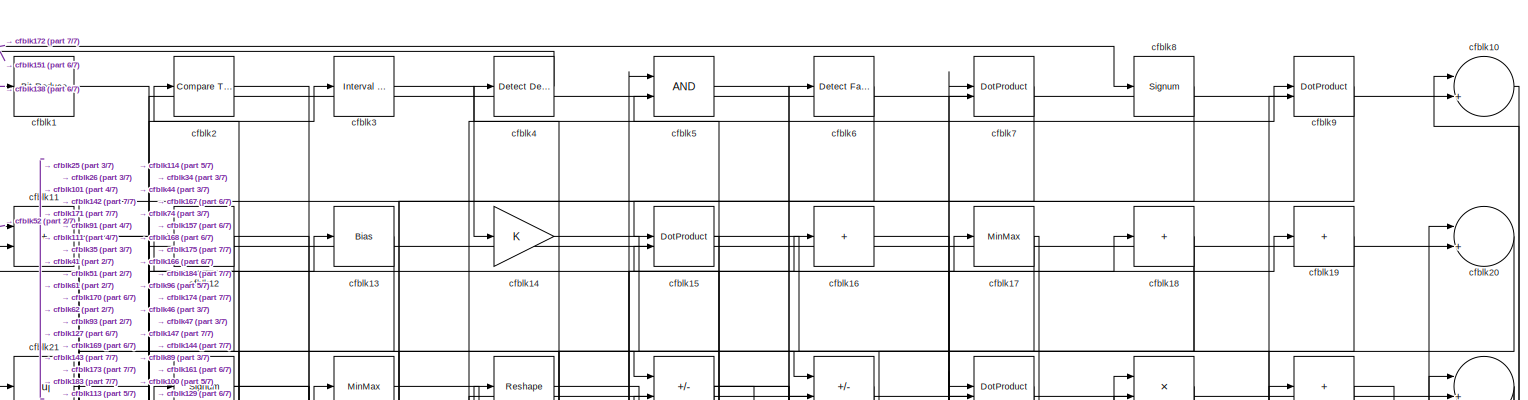
[diagram: root canvas - part 1/7, full width, top band]
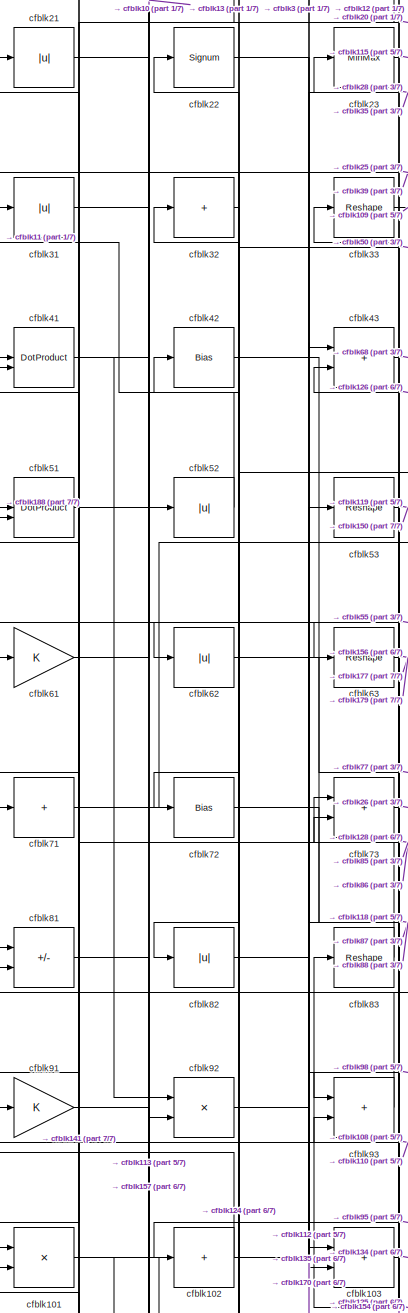
[diagram: root canvas - part 2/7, middle left region]
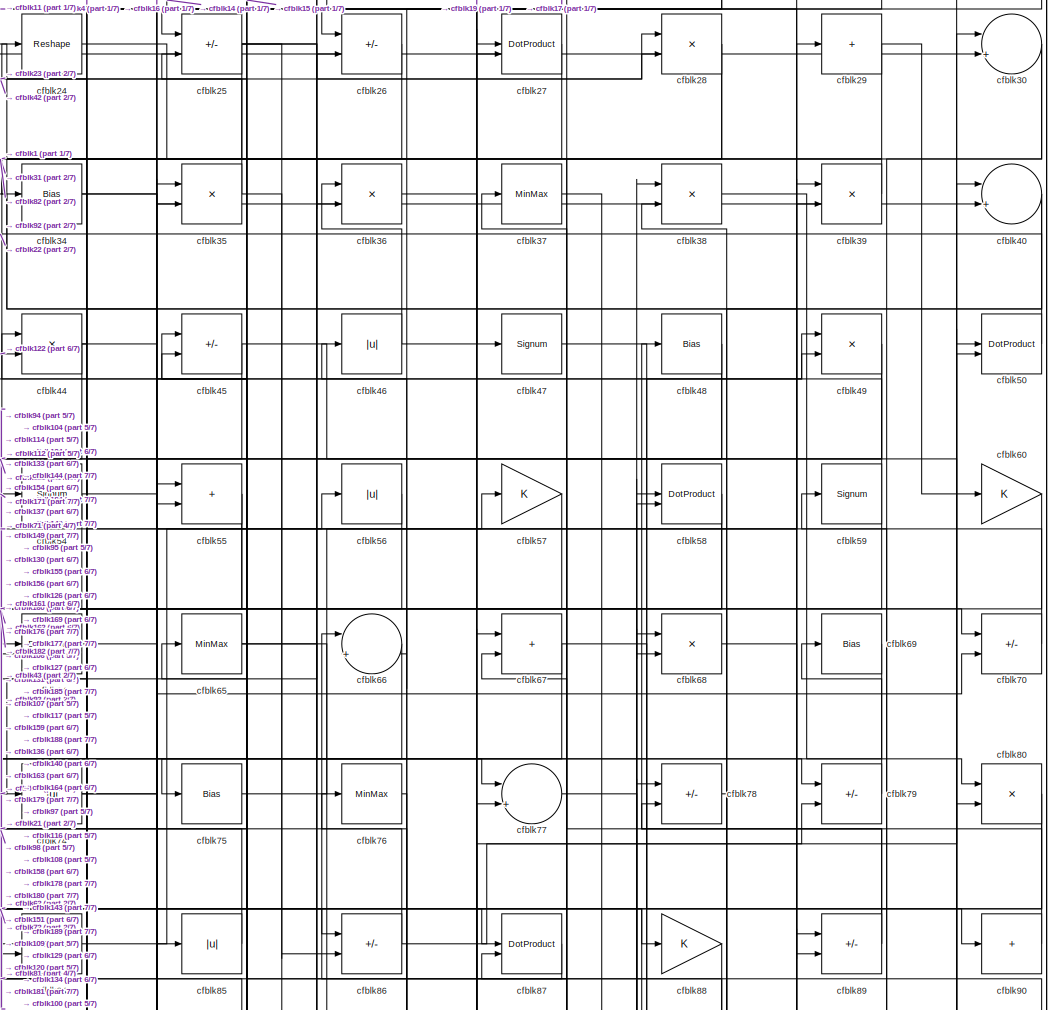
[diagram: root canvas - part 3/7, top center region]
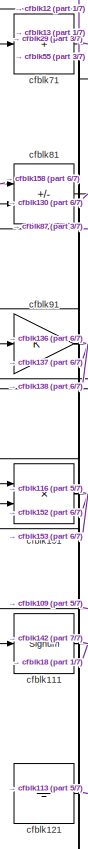
[diagram: root canvas - part 4/7, middle left region]
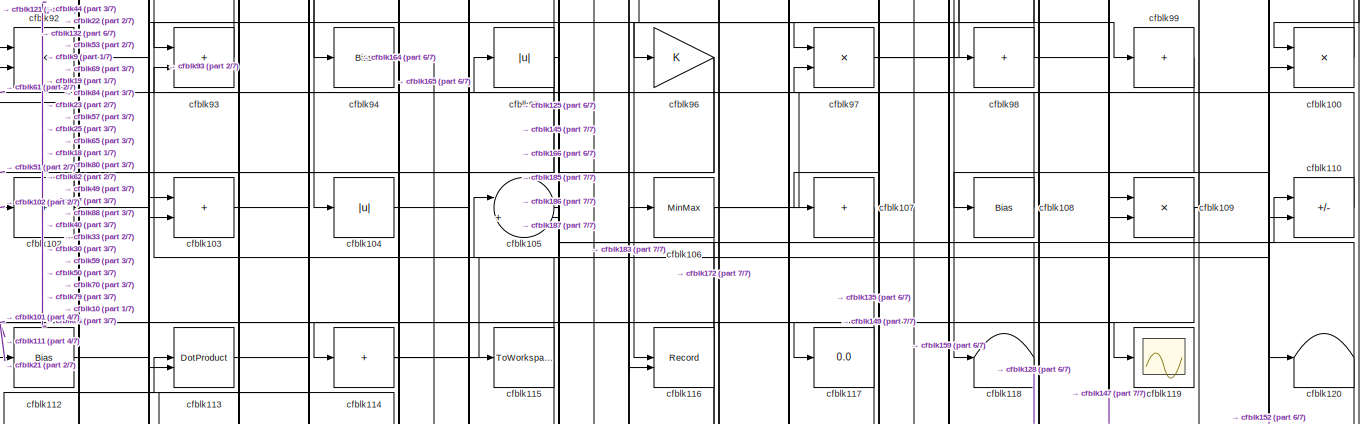
[diagram: root canvas - part 5/7, full width, middle band]
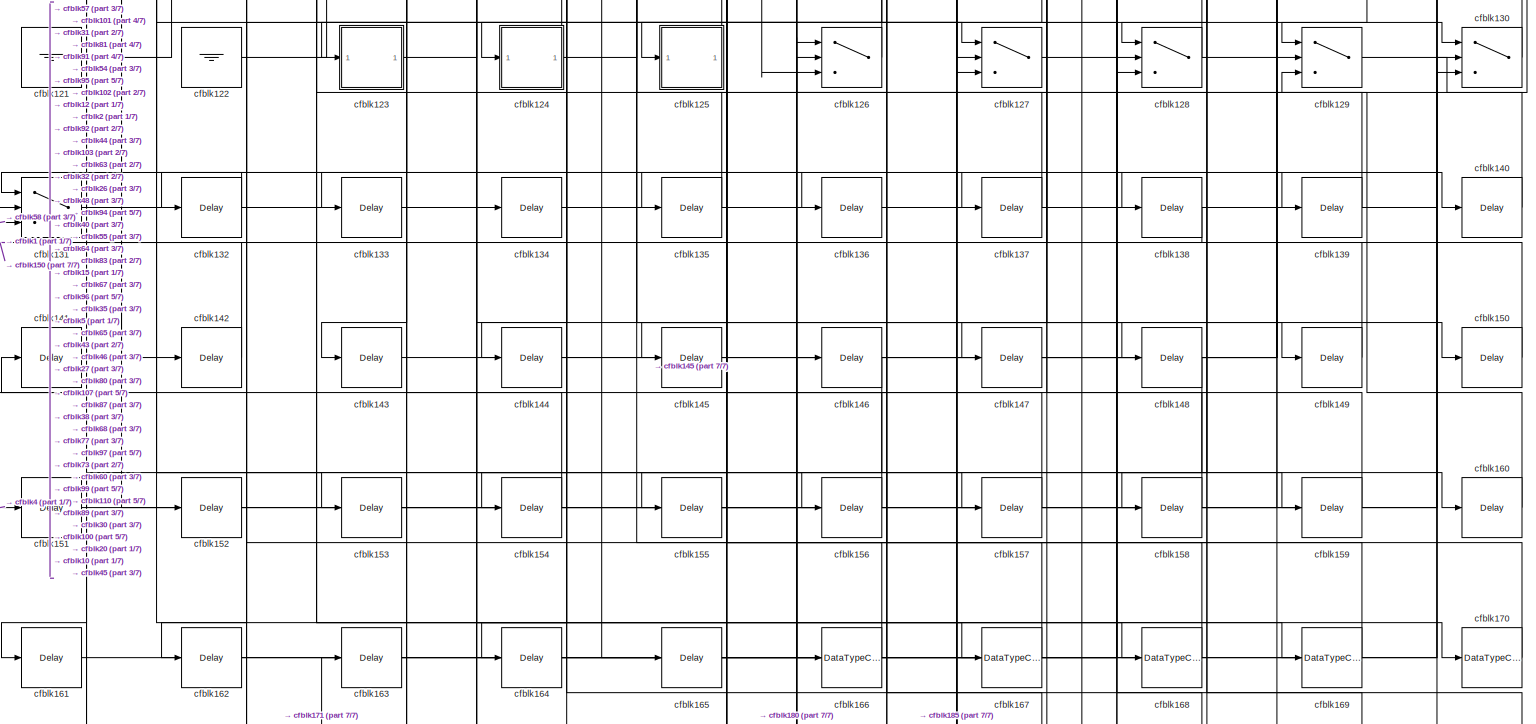
[diagram: root canvas - part 6/7, full width, bottom band]
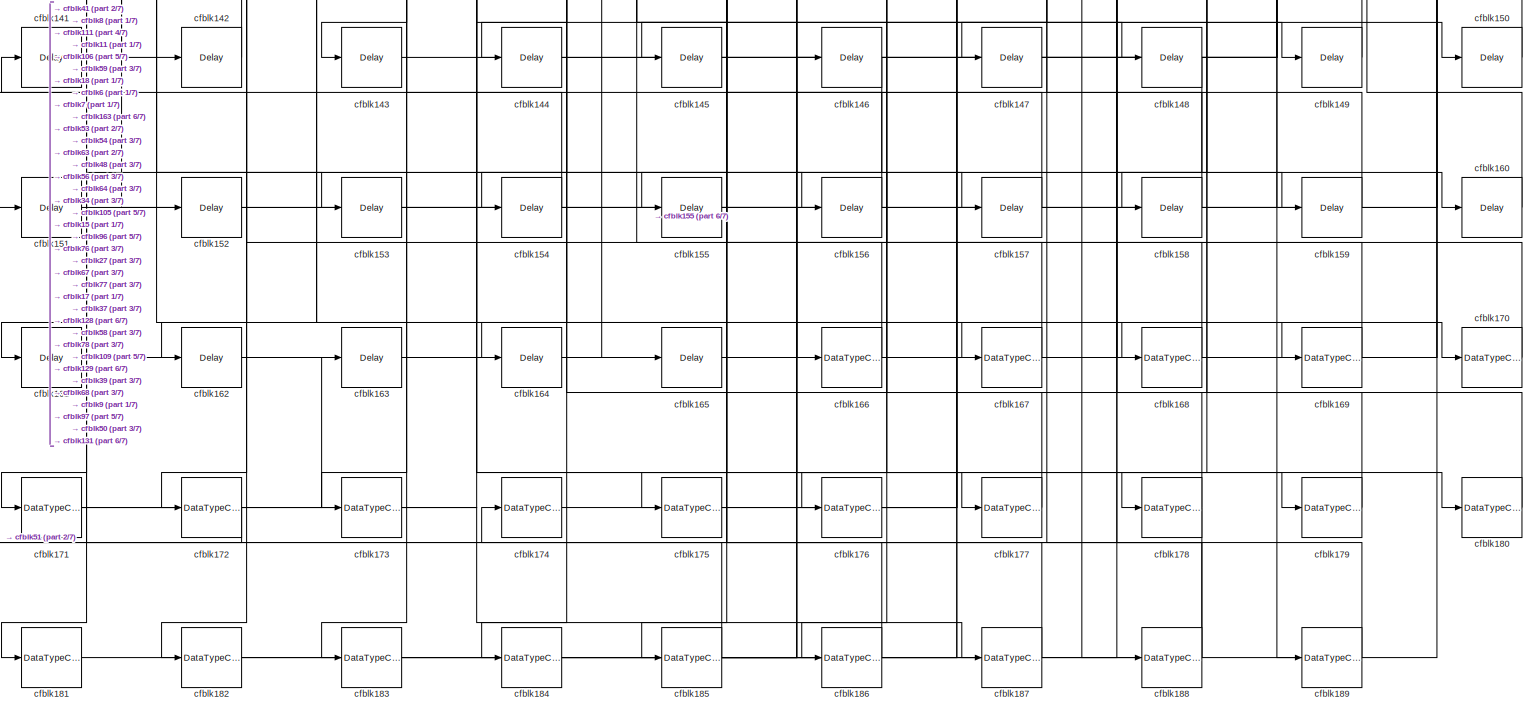
[diagram: root canvas - part 7/7, full width, bottom band]
MODEL slx_d969ff8a7fae
KIND model
CONFIG AbsTol = auto
CONFIG EnableMultiTasking = off
CONFIG FixedStep = auto
CONFIG MaxStep = auto
CONFIG MinStep = auto
CONFIG RelTol = 1e-3
CONFIG SampleTimeConstraint = Unconstrained
CONFIG SolverName = VariableStepAuto
CONFIG StartTime = 0.0
CONFIG StopTime = 10.0
BLOCK [Reference] cfblk1  REF=hdlsllib/Logic and Bit
Operations/Bit Reduce
  SourceBlock = hdlsllib/Logic and Bit\nOperations/Bit Reduce
  SourceType = Bit Reduce
BLOCK [Sum] cfblk10
  Inputs = |++
BLOCK [Product] cfblk100
  Inputs = */
  RndMeth = Zero
  SaturateOnIntegerOverflow = on
BLOCK [Product] cfblk101
  Inputs = */
  RndMeth = Zero
  SaturateOnIntegerOverflow = on
BLOCK [Sum] cfblk102
  IconShape = rectangular
  Inputs = +
BLOCK [Sum] cfblk103
  IconShape = rectangular
BLOCK [Abs] cfblk104
  SaturateOnIntegerOverflow = off
BLOCK [Sum] cfblk105
  Inputs = |++
BLOCK [MinMax] cfblk106
BLOCK [Sum] cfblk107
  IconShape = rectangular
  Inputs = +
BLOCK [Bias] cfblk108
  Bias = 0.0
  SaturateOnIntegerOverflow = off
BLOCK [Product] cfblk109
  Inputs = */
  RndMeth = Zero
  SaturateOnIntegerOverflow = on
BLOCK [Sum] cfblk11
  IconShape = rectangular
BLOCK [Sum] cfblk110
  IconShape = rectangular
  Inputs = +-
BLOCK [Signum] cfblk111
BLOCK [Bias] cfblk112
  Bias = 0.0
  SaturateOnIntegerOverflow = off
BLOCK [DotProduct] cfblk113
  OutDataTypeStr = Inherit: Inherit via internal rule
BLOCK [Sum] cfblk114
  IconShape = rectangular
  Inputs = +
BLOCK [ToWorkspace] cfblk115
  MaxDataPoints = inf
  SampleTime = -1
  SaveFormat = Timeseries
  VariableName = simout
BLOCK [Record] cfblk116
  CompatibilityTag = XY
  FileSettingsInternal = {"entries":[{"content":{"excelSettings":{"content":{},"type":"Streamout.ExcelSettings"}},"type":"Streamout.FileSettingStorage","uuid":""}],"packageUris":["http:\/\/schema.mathworks.com\/mf0\/streamout_blocks\/R2020a"],"version":"1.0"}
  Layout = [1 1]
  SignalsInternal = {"entries":[{"content":{"signals":[{"content":{"blockPath":[],"dimensions":[1],"domain":"","lineColor":"#a2142f","plots":[1],"port":1,"signalID":2341,"signalName":"XY Graph:1"},"type":"RecordBlkView.Signal","uuid":""},{"content":{"blockPath":[],"dimensions":[1],"domain":"","lineColor":"#139fff","plots":[1],"port":2,"signalID":2344,"signalName":"XY Graph:2"},"type":"RecordBlkView.Signal","uuid":""}...<+146ch>
  VisualizationBindings = {"xyplotplugin":{"info":[{"series":[{"bindingParametersList":[{"parameter":"X-Axis","signalID":2341,"signalName":"XY Graph:1"},{"parameter":"Y-Axis","signalID":2344,"signalName":"XY Graph:2"}],"seriesID":35827}],"subplotID":1}]}}
  st = -1
BLOCK [Display] cfblk117
  Decimation = 1
BLOCK [Terminator] cfblk118
BLOCK [Scope] cfblk119
  Floating = off
  NumInputPorts = 1
  ScopeSpecificationString = Simulink.scopes.TimeScopeBlockCfg('CurrentConfiguration', extmgr.ConfigurationSet(extmgr.Configuration('Core','General UI',true),extmgr.Configuration('Core','Source UI',true),extmgr.Configuration('Sources','WiredSimulink',true,'DataLoggingVariableName','ScopeData2','DataLoggingSaveFormat','Array','DataLoggingLimitDataPoints',true,'DataLoggingDecimation','1'),extmgr.Configuration('Visuals','Time Do...<+868ch>
BLOCK [Sum] cfblk12
  IconShape = rectangular
  Inputs = +
BLOCK [Terminator] cfblk120
BLOCK [Ground] cfblk121
BLOCK [Ground] cfblk122
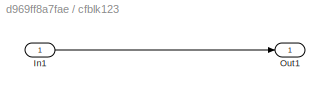
BLOCK [SubSystem] cfblk123
  LibrarySourceBlock = hdlsllib/Ports &\nSubsystems/Subsystem
BLOCK [Inport] cfblk123/In1
BLOCK [Outport] cfblk123/Out1
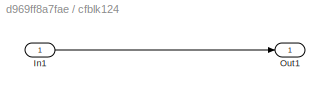
BLOCK [SubSystem] cfblk124
  LibrarySourceBlock = hdlsllib/Ports &\nSubsystems/Subsystem
BLOCK [Inport] cfblk124/In1
BLOCK [Outport] cfblk124/Out1
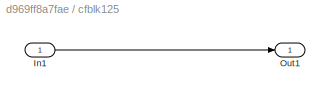
BLOCK [SubSystem] cfblk125
  LibrarySourceBlock = hdlsllib/Ports &\nSubsystems/Subsystem
BLOCK [Inport] cfblk125/In1
BLOCK [Outport] cfblk125/Out1
BLOCK [Switch] cfblk126
  InputSameDT = off
  SaturateOnIntegerOverflow = off
BLOCK [Switch] cfblk127
  InputSameDT = off
  SaturateOnIntegerOverflow = off
BLOCK [Switch] cfblk128
  InputSameDT = off
  SaturateOnIntegerOverflow = off
BLOCK [Switch] cfblk129
  InputSameDT = off
  SaturateOnIntegerOverflow = off
BLOCK [Bias] cfblk13
  Bias = 0.0
  SaturateOnIntegerOverflow = off
BLOCK [Switch] cfblk130
  InputSameDT = off
  SaturateOnIntegerOverflow = off
BLOCK [Switch] cfblk131
  InputSameDT = off
  SaturateOnIntegerOverflow = off
BLOCK [Delay] cfblk132
  InputPortMap = u0
  SampleTime = 1
BLOCK [Delay] cfblk133
  InputPortMap = u0
  SampleTime = 1
BLOCK [Delay] cfblk134
  InputPortMap = u0
  SampleTime = 1
BLOCK [Delay] cfblk135
  InputPortMap = u0
  SampleTime = 1
BLOCK [Delay] cfblk136
  InputPortMap = u0
  SampleTime = 1
BLOCK [Delay] cfblk137
  InputPortMap = u0
  SampleTime = 1
BLOCK [Delay] cfblk138
  InputPortMap = u0
  SampleTime = 1
BLOCK [Delay] cfblk139
  InputPortMap = u0
  SampleTime = 1
BLOCK [Gain] cfblk14
BLOCK [Delay] cfblk140
  InputPortMap = u0
  SampleTime = 1
BLOCK [Delay] cfblk141
  InputPortMap = u0
  SampleTime = 1
BLOCK [Delay] cfblk142
  InputPortMap = u0
  SampleTime = 1
BLOCK [Delay] cfblk143
  InputPortMap = u0
  SampleTime = 1
BLOCK [Delay] cfblk144
  InputPortMap = u0
  SampleTime = 1
BLOCK [Delay] cfblk145
  InputPortMap = u0
  SampleTime = 1
BLOCK [Delay] cfblk146
  InputPortMap = u0
  SampleTime = 1
BLOCK [Delay] cfblk147
  InputPortMap = u0
  SampleTime = 1
BLOCK [Delay] cfblk148
  InputPortMap = u0
  SampleTime = 1
BLOCK [Delay] cfblk149
  InputPortMap = u0
  SampleTime = 1
BLOCK [DotProduct] cfblk15
  OutDataTypeStr = Inherit: Inherit via internal rule
BLOCK [Delay] cfblk150
  InputPortMap = u0
  SampleTime = 1
BLOCK [Delay] cfblk151
  InputPortMap = u0
  SampleTime = 1
BLOCK [Delay] cfblk152
  InputPortMap = u0
  SampleTime = 1
BLOCK [Delay] cfblk153
  InputPortMap = u0
  SampleTime = 1
BLOCK [Delay] cfblk154
  InputPortMap = u0
  SampleTime = 1
BLOCK [Delay] cfblk155
  InputPortMap = u0
  SampleTime = 1
BLOCK [Delay] cfblk156
  InputPortMap = u0
  SampleTime = 1
BLOCK [Delay] cfblk157
  InputPortMap = u0
  SampleTime = 1
BLOCK [Delay] cfblk158
  InputPortMap = u0
  SampleTime = 1
BLOCK [Delay] cfblk159
  InputPortMap = u0
  SampleTime = 1
BLOCK [Sum] cfblk16
  IconShape = rectangular
  Inputs = +
BLOCK [Delay] cfblk160
  InputPortMap = u0
  SampleTime = 1
BLOCK [Delay] cfblk161
  InputPortMap = u0
  SampleTime = 1
BLOCK [Delay] cfblk162
  InputPortMap = u0
  SampleTime = 1
BLOCK [Delay] cfblk163
  InputPortMap = u0
  SampleTime = 1
BLOCK [Delay] cfblk164
  InputPortMap = u0
  SampleTime = 1
BLOCK [Delay] cfblk165
  InputPortMap = u0
  SampleTime = 1
BLOCK [DataTypeConversion] cfblk166
  OutDataTypeStr = uint8
  RndMeth = Floor
  SaturateOnIntegerOverflow = off
BLOCK [DataTypeConversion] cfblk167
  OutDataTypeStr = uint8
  RndMeth = Floor
  SaturateOnIntegerOverflow = off
BLOCK [DataTypeConversion] cfblk168
  OutDataTypeStr = uint8
  RndMeth = Floor
  SaturateOnIntegerOverflow = off
BLOCK [DataTypeConversion] cfblk169
  OutDataTypeStr = uint8
  RndMeth = Floor
  SaturateOnIntegerOverflow = off
BLOCK [MinMax] cfblk17
BLOCK [DataTypeConversion] cfblk170
  OutDataTypeStr = uint8
  RndMeth = Floor
  SaturateOnIntegerOverflow = off
BLOCK [DataTypeConversion] cfblk171
  RndMeth = Floor
  SaturateOnIntegerOverflow = off
BLOCK [DataTypeConversion] cfblk172
  OutDataTypeStr = uint8
  RndMeth = Floor
  SaturateOnIntegerOverflow = off
BLOCK [DataTypeConversion] cfblk173
  OutDataTypeStr = uint8
  RndMeth = Floor
  SaturateOnIntegerOverflow = off
BLOCK [DataTypeConversion] cfblk174
  OutDataTypeStr = uint8
  RndMeth = Floor
  SaturateOnIntegerOverflow = off
BLOCK [DataTypeConversion] cfblk175
  OutDataTypeStr = uint8
  RndMeth = Floor
  SaturateOnIntegerOverflow = off
BLOCK [DataTypeConversion] cfblk176
  OutDataTypeStr = uint8
  RndMeth = Floor
  SaturateOnIntegerOverflow = off
BLOCK [DataTypeConversion] cfblk177
  OutDataTypeStr = uint8
  RndMeth = Floor
  SaturateOnIntegerOverflow = off
BLOCK [DataTypeConversion] cfblk178
  RndMeth = Floor
  SaturateOnIntegerOverflow = off
BLOCK [DataTypeConversion] cfblk179
  OutDataTypeStr = uint8
  RndMeth = Floor
  SaturateOnIntegerOverflow = off
BLOCK [Sum] cfblk18
  IconShape = rectangular
  Inputs = +
BLOCK [DataTypeConversion] cfblk180
  OutDataTypeStr = uint8
  RndMeth = Floor
  SaturateOnIntegerOverflow = off
BLOCK [DataTypeConversion] cfblk181
  OutDataTypeStr = uint8
  RndMeth = Floor
  SaturateOnIntegerOverflow = off
BLOCK [DataTypeConversion] cfblk182
  OutDataTypeStr = uint8
  RndMeth = Floor
  SaturateOnIntegerOverflow = off
BLOCK [DataTypeConversion] cfblk183
  OutDataTypeStr = uint8
  RndMeth = Floor
  SaturateOnIntegerOverflow = off
BLOCK [DataTypeConversion] cfblk184
  OutDataTypeStr = uint8
  RndMeth = Floor
  SaturateOnIntegerOverflow = off
BLOCK [DataTypeConversion] cfblk185
  RndMeth = Floor
  SaturateOnIntegerOverflow = off
BLOCK [DataTypeConversion] cfblk186
  OutDataTypeStr = uint8
  RndMeth = Floor
  SaturateOnIntegerOverflow = off
BLOCK [DataTypeConversion] cfblk187
  OutDataTypeStr = uint8
  RndMeth = Floor
  SaturateOnIntegerOverflow = off
BLOCK [DataTypeConversion] cfblk188
  RndMeth = Floor
  SaturateOnIntegerOverflow = off
BLOCK [DataTypeConversion] cfblk189
  OutDataTypeStr = uint8
  RndMeth = Floor
  SaturateOnIntegerOverflow = off
BLOCK [Sum] cfblk19
  IconShape = rectangular
  Inputs = +
BLOCK [Reference] cfblk2  REF=hdlsllib/Logic and Bit
Operations/Compare
To Zero
  SourceBlock = hdlsllib/Logic and Bit\nOperations/Compare\nTo Zero
  SourceType = Compare To Zero
BLOCK [Sum] cfblk20
  Inputs = |++
BLOCK [Abs] cfblk21
  SaturateOnIntegerOverflow = off
BLOCK [Signum] cfblk22
BLOCK [MinMax] cfblk23
BLOCK [Reshape] cfblk24
BLOCK [Sum] cfblk25
  IconShape = rectangular
  Inputs = +-
BLOCK [Sum] cfblk26
  IconShape = rectangular
  Inputs = +-
BLOCK [DotProduct] cfblk27
  OutDataTypeStr = Inherit: Inherit via internal rule
BLOCK [Product] cfblk28
  Inputs = */
  RndMeth = Zero
  SaturateOnIntegerOverflow = on
BLOCK [Sum] cfblk29
  IconShape = rectangular
  Inputs = +
BLOCK [Reference] cfblk3  REF=hdlsllib/Logic and Bit
Operations/Interval Test
  SourceBlock = hdlsllib/Logic and Bit\nOperations/Interval Test
  SourceType = Interval Test
BLOCK [Sum] cfblk30
  Inputs = |++
BLOCK [Abs] cfblk31
  SaturateOnIntegerOverflow = off
BLOCK [Sum] cfblk32
  IconShape = rectangular
  Inputs = +
BLOCK [Reshape] cfblk33
BLOCK [Bias] cfblk34
  Bias = 0.0
  SaturateOnIntegerOverflow = off
BLOCK [Product] cfblk35
  Inputs = */
  RndMeth = Zero
  SaturateOnIntegerOverflow = on
BLOCK [Product] cfblk36
  Inputs = */
  RndMeth = Zero
  SaturateOnIntegerOverflow = on
BLOCK [MinMax] cfblk37
BLOCK [Product] cfblk38
  Inputs = */
  RndMeth = Zero
  SaturateOnIntegerOverflow = on
BLOCK [Product] cfblk39
  Inputs = */
  RndMeth = Zero
  SaturateOnIntegerOverflow = on
BLOCK [Reference] cfblk4  REF=simulink/Logic and Bit
Operations/Detect
Decrease
  LibrarySourceBlock = hdlsllib/Logic and Bit\nOperations/Detect\nDecrease
  SourceBlock = simulink/Logic and Bit\nOperations/Detect\nDecrease
  SourceType = Detect Decrease
BLOCK [Sum] cfblk40
  Inputs = |++
BLOCK [DotProduct] cfblk41
  OutDataTypeStr = Inherit: Inherit via internal rule
BLOCK [Bias] cfblk42
  Bias = 0.0
  SaturateOnIntegerOverflow = off
BLOCK [Sum] cfblk43
  IconShape = rectangular
BLOCK [Product] cfblk44
  Inputs = */
  RndMeth = Zero
  SaturateOnIntegerOverflow = on
BLOCK [Sum] cfblk45
  IconShape = rectangular
  Inputs = +-
BLOCK [Abs] cfblk46
  SaturateOnIntegerOverflow = off
BLOCK [Signum] cfblk47
BLOCK [Bias] cfblk48
  Bias = 0.0
  SaturateOnIntegerOverflow = off
BLOCK [Product] cfblk49
  Inputs = */
  RndMeth = Zero
  SaturateOnIntegerOverflow = on
BLOCK [Logic] cfblk5
  AllPortsSameDT = off
  OutDataTypeStr = boolean
BLOCK [DotProduct] cfblk50
  OutDataTypeStr = Inherit: Inherit via internal rule
BLOCK [DotProduct] cfblk51
  OutDataTypeStr = Inherit: Inherit via internal rule
BLOCK [Abs] cfblk52
  SaturateOnIntegerOverflow = off
BLOCK [Reshape] cfblk53
BLOCK [Signum] cfblk54
BLOCK [Sum] cfblk55
  IconShape = rectangular
BLOCK [Abs] cfblk56
  SaturateOnIntegerOverflow = off
BLOCK [Gain] cfblk57
BLOCK [DotProduct] cfblk58
  OutDataTypeStr = Inherit: Inherit via internal rule
BLOCK [Signum] cfblk59
BLOCK [Reference] cfblk6  REF=hdlsllib/Logic and Bit
Operations/Detect Fall
Nonpositive
  SourceBlock = hdlsllib/Logic and Bit\nOperations/Detect Fall\nNonpositive
  SourceType = Detect Fall Nonpositive
BLOCK [Gain] cfblk60
BLOCK [Gain] cfblk61
BLOCK [Abs] cfblk62
  SaturateOnIntegerOverflow = off
BLOCK [Reshape] cfblk63
BLOCK [DotProduct] cfblk64
  OutDataTypeStr = Inherit: Inherit via internal rule
BLOCK [MinMax] cfblk65
BLOCK [Sum] cfblk66
  Inputs = |++
BLOCK [Sum] cfblk67
  IconShape = rectangular
BLOCK [Product] cfblk68
  Inputs = */
  RndMeth = Zero
  SaturateOnIntegerOverflow = on
BLOCK [Bias] cfblk69
  Bias = 0.0
  SaturateOnIntegerOverflow = off
BLOCK [DotProduct] cfblk7
  OutDataTypeStr = Inherit: Inherit via internal rule
BLOCK [Sum] cfblk70
  IconShape = rectangular
  Inputs = +-
BLOCK [Sum] cfblk71
  IconShape = rectangular
  Inputs = +
BLOCK [Bias] cfblk72
  Bias = 0.0
  SaturateOnIntegerOverflow = off
BLOCK [Sum] cfblk73
  IconShape = rectangular
BLOCK [Abs] cfblk74
  SaturateOnIntegerOverflow = off
BLOCK [Bias] cfblk75
  Bias = 0.0
  SaturateOnIntegerOverflow = off
BLOCK [MinMax] cfblk76
BLOCK [Sum] cfblk77
  Inputs = |++
BLOCK [Sum] cfblk78
  IconShape = rectangular
  Inputs = +-
BLOCK [Sum] cfblk79
  IconShape = rectangular
  Inputs = +-
BLOCK [Signum] cfblk8
BLOCK [Product] cfblk80
  Inputs = */
  RndMeth = Zero
  SaturateOnIntegerOverflow = on
BLOCK [Sum] cfblk81
  IconShape = rectangular
  Inputs = +-
BLOCK [Abs] cfblk82
  SaturateOnIntegerOverflow = off
BLOCK [Reshape] cfblk83
BLOCK [DotProduct] cfblk84
  OutDataTypeStr = Inherit: Inherit via internal rule
BLOCK [Abs] cfblk85
  SaturateOnIntegerOverflow = off
BLOCK [Sum] cfblk86
  IconShape = rectangular
  Inputs = +-
BLOCK [DotProduct] cfblk87
  OutDataTypeStr = Inherit: Inherit via internal rule
BLOCK [Gain] cfblk88
BLOCK [Sum] cfblk89
  IconShape = rectangular
  Inputs = +-
BLOCK [DotProduct] cfblk9
  OutDataTypeStr = Inherit: Inherit via internal rule
BLOCK [Sum] cfblk90
  IconShape = rectangular
  Inputs = +
BLOCK [Gain] cfblk91
BLOCK [Product] cfblk92
  Inputs = */
  RndMeth = Zero
  SaturateOnIntegerOverflow = on
BLOCK [Sum] cfblk93
  IconShape = rectangular
BLOCK [Bias] cfblk94
  Bias = 0.0
  SaturateOnIntegerOverflow = off
BLOCK [Abs] cfblk95
  SaturateOnIntegerOverflow = off
BLOCK [Gain] cfblk96
BLOCK [Product] cfblk97
  Inputs = */
  RndMeth = Zero
  SaturateOnIntegerOverflow = on
BLOCK [Sum] cfblk98
  IconShape = rectangular
  Inputs = +
BLOCK [Sum] cfblk99
  IconShape = rectangular
  Inputs = +
LINE cfblk100:1 -> cfblk66:1
NET cfblk101:1 -> cfblk116:2, cfblk152:1, cfblk153:1
NET cfblk102:1 -> cfblk128:2, cfblk41:1
LINE cfblk103:1 -> cfblk134:1
LINE cfblk104:1 -> cfblk57:1
LINE cfblk105:1 -> cfblk185:1
NET cfblk106:1 -> cfblk172:1, cfblk50:1, cfblk79:2
LINE cfblk107:1 -> cfblk135:1
LINE cfblk108:1 -> cfblk61:1
NET cfblk109:1 -> cfblk111:1, cfblk59:1
LINE cfblk10:1 -> cfblk100:1
LINE cfblk110:1 -> cfblk93:2
NET cfblk111:1 -> cfblk142:1, cfblk18:1
LINE cfblk112:1 -> cfblk53:1
LINE cfblk113:1 -> cfblk9:1
NET cfblk114:1 -> cfblk70:2, cfblk80:2, cfblk84:2
NET cfblk11:1 -> cfblk20:2, cfblk25:1
NET cfblk121:1 -> cfblk101:2, cfblk113:1
LINE cfblk122:1 -> cfblk44:2
LINE cfblk123/In1:1 -> cfblk123/Out1:1
LINE cfblk123:1 -> cfblk30:2
LINE cfblk124/In1:1 -> cfblk124/Out1:1
NET cfblk124:1 -> cfblk32:1, cfblk40:2
LINE cfblk125/In1:1 -> cfblk125/Out1:1
LINE cfblk125:1 -> cfblk83:1
LINE cfblk126:1 -> cfblk43:2
LINE cfblk127:1 -> cfblk139:1
NET cfblk128:1 -> cfblk110:1, cfblk73:1
LINE cfblk129:1 -> cfblk10:1
NET cfblk12:1 -> cfblk127:2, cfblk91:1
LINE cfblk130:1 -> cfblk45:1
NET cfblk131:1 -> cfblk167:1, cfblk27:2
LINE cfblk132:1 -> cfblk131:1
LINE cfblk133:1 -> cfblk168:1
LINE cfblk134:1 -> cfblk30:1
LINE cfblk135:1 -> cfblk43:1
LINE cfblk136:1 -> cfblk68:1
LINE cfblk137:1 -> cfblk55:1
LINE cfblk138:1 -> cfblk1:1
LINE cfblk139:1 -> cfblk126:2
LINE cfblk13:1 -> cfblk101:1
LINE cfblk140:1 -> cfblk35:1
LINE cfblk141:1 -> cfblk41:2
LINE cfblk142:1 -> cfblk11:2
LINE cfblk143:1 -> cfblk39:2
LINE cfblk144:1 -> cfblk9:2
LINE cfblk145:1 -> cfblk129:2
LINE cfblk146:1 -> cfblk181:1
LINE cfblk147:1 -> cfblk109:1
LINE cfblk148:1 -> cfblk186:1
LINE cfblk149:1 -> cfblk97:2
LINE cfblk14:1 -> cfblk26:1
LINE cfblk150:1 -> cfblk131:2
LINE cfblk151:1 -> cfblk89:1
LINE cfblk152:1 -> cfblk100:2
LINE cfblk153:1 -> cfblk130:3
LINE cfblk154:1 -> cfblk73:2
LINE cfblk155:1 -> cfblk180:1
LINE cfblk156:1 -> cfblk45:2
LINE cfblk157:1 -> cfblk15:2
LINE cfblk158:1 -> cfblk81:1
LINE cfblk159:1 -> cfblk87:2
NET cfblk15:1 -> cfblk175:1, cfblk89:2
LINE cfblk160:1 -> cfblk129:3
LINE cfblk161:1 -> cfblk20:1
LINE cfblk162:1 -> cfblk126:1
LINE cfblk163:1 -> cfblk58:2
LINE cfblk164:1 -> cfblk38:1
LINE cfblk165:1 -> cfblk130:2
LINE cfblk166:1 -> cfblk95:1
LINE cfblk167:1 -> cfblk5:1
LINE cfblk168:1 -> cfblk5:2
LINE cfblk169:1 -> cfblk46:1
LINE cfblk16:1 -> cfblk47:1
LINE cfblk170:1 -> cfblk2:1
NET cfblk171:1 -> cfblk163:1, cfblk54:1
LINE cfblk172:1 -> cfblk8:1
LINE cfblk173:1 -> cfblk187:1
LINE cfblk174:1 -> cfblk7:1
LINE cfblk175:1 -> cfblk7:2
LINE cfblk176:1 -> cfblk27:1
LINE cfblk177:1 -> cfblk76:1
NET cfblk178:1 -> cfblk174:1, cfblk64:2
LINE cfblk179:1 -> cfblk78:1
NET cfblk17:1 -> cfblk147:1, cfblk34:1
LINE cfblk180:1 -> cfblk78:2
LINE cfblk181:1 -> cfblk50:2
LINE cfblk182:1 -> cfblk146:1
LINE cfblk183:1 -> cfblk106:1
LINE cfblk184:1 -> cfblk6:1
NET cfblk185:1 -> cfblk128:3, cfblk141:1, cfblk67:1, cfblk77:2
LINE cfblk186:1 -> cfblk105:1
LINE cfblk187:1 -> cfblk105:2
NET cfblk188:1 -> cfblk51:1, cfblk58:1
LINE cfblk189:1 -> cfblk37:1
NET cfblk18:1 -> cfblk143:1, cfblk96:1
LINE cfblk19:1 -> cfblk114:1
LINE cfblk1:1 -> cfblk35:2
LINE cfblk20:1 -> cfblk62:1
LINE cfblk21:1 -> cfblk113:2
NET cfblk22:1 -> cfblk103:1, cfblk98:1
LINE cfblk23:1 -> cfblk115:1
LINE cfblk24:1 -> cfblk36:2
NET cfblk25:1 -> cfblk28:2, cfblk79:1, cfblk86:2, cfblk92:2
LINE cfblk26:1 -> cfblk124:1
LINE cfblk27:1 -> cfblk64:1
NET cfblk28:1 -> cfblk82:1, cfblk84:1
NET cfblk29:1 -> cfblk60:1, cfblk75:1
LINE cfblk2:1 -> cfblk169:1
NET cfblk30:1 -> cfblk117:1, cfblk129:1
NET cfblk31:1 -> cfblk157:1, cfblk63:1
LINE cfblk32:1 -> cfblk72:1
LINE cfblk33:1 -> cfblk109:2
NET cfblk34:1 -> cfblk148:1, cfblk149:1
NET cfblk35:1 -> cfblk126:3, cfblk23:1
LINE cfblk36:1 -> cfblk70:1
LINE cfblk37:1 -> cfblk188:1
LINE cfblk38:1 -> cfblk80:1
LINE cfblk39:1 -> cfblk31:1
LINE cfblk3:1 -> cfblk14:1
NET cfblk40:1 -> cfblk108:1, cfblk154:1
NET cfblk41:1 -> cfblk10:2, cfblk52:1
NET cfblk42:1 -> cfblk28:1, cfblk77:1
LINE cfblk43:1 -> cfblk68:2
NET cfblk44:1 -> cfblk112:1, cfblk17:1, cfblk4:1
NET cfblk45:1 -> cfblk120:1, cfblk123:1
NET cfblk46:1 -> cfblk19:1, cfblk36:1
LINE cfblk47:1 -> cfblk90:1
NET cfblk48:1 -> cfblk133:1, cfblk184:1
NET cfblk49:1 -> cfblk107:1, cfblk55:2
LINE cfblk4:1 -> cfblk151:1
LINE cfblk50:1 -> cfblk22:1
NET cfblk51:1 -> cfblk3:1, cfblk92:1
LINE cfblk52:1 -> cfblk11:1
NET cfblk53:1 -> cfblk119:1, cfblk150:1
NET cfblk54:1 -> cfblk162:1, cfblk49:2
NET cfblk55:1 -> cfblk71:1, cfblk93:1
LINE cfblk56:1 -> cfblk144:1
LINE cfblk57:1 -> cfblk161:1
NET cfblk58:1 -> cfblk131:3, cfblk66:2
NET cfblk59:1 -> cfblk182:1, cfblk24:1
LINE cfblk5:1 -> cfblk166:1
LINE cfblk60:1 -> cfblk158:1
LINE cfblk61:1 -> cfblk13:1
NET cfblk62:1 -> cfblk118:1, cfblk87:1
NET cfblk63:1 -> cfblk156:1, cfblk177:1, cfblk179:1
LINE cfblk64:1 -> cfblk127:1
NET cfblk65:1 -> cfblk160:1, cfblk97:1
LINE cfblk66:1 -> cfblk74:1
NET cfblk67:1 -> cfblk155:1, cfblk99:1
LINE cfblk68:1 -> cfblk189:1
LINE cfblk69:1 -> cfblk104:1
LINE cfblk6:1 -> cfblk183:1
LINE cfblk70:1 -> cfblk44:1
LINE cfblk71:1 -> cfblk29:1
NET cfblk72:1 -> cfblk86:1, cfblk88:1
LINE cfblk73:1 -> cfblk26:2
NET cfblk74:1 -> cfblk16:1, cfblk85:1
LINE cfblk75:1 -> cfblk39:1
LINE cfblk76:1 -> cfblk176:1
LINE cfblk77:1 -> cfblk140:1
LINE cfblk78:1 -> cfblk178:1
LINE cfblk79:1 -> cfblk69:1
LINE cfblk7:1 -> cfblk173:1
NET cfblk80:1 -> cfblk127:3, cfblk94:1
LINE cfblk81:1 -> cfblk130:1
LINE cfblk82:1 -> cfblk103:2
LINE cfblk83:1 -> cfblk42:1
LINE cfblk84:1 -> cfblk56:1
LINE cfblk85:1 -> cfblk21:1
NET cfblk86:1 -> cfblk33:1, cfblk40:1
LINE cfblk87:1 -> cfblk81:2
LINE cfblk88:1 -> cfblk116:1
NET cfblk89:1 -> cfblk48:1, cfblk67:2
LINE cfblk8:1 -> cfblk171:1
LINE cfblk90:1 -> cfblk38:2
NET cfblk91:1 -> cfblk136:1, cfblk137:1, cfblk138:1
LINE cfblk92:1 -> cfblk170:1
LINE cfblk93:1 -> cfblk12:1
NET cfblk94:1 -> cfblk164:1, cfblk165:1
NET cfblk95:1 -> cfblk102:1, cfblk132:1, cfblk25:2, cfblk51:2
NET cfblk96:1 -> cfblk125:1, cfblk145:1
NET cfblk97:1 -> cfblk159:1, cfblk49:1
NET cfblk98:1 -> cfblk110:2, cfblk65:1
LINE cfblk99:1 -> cfblk128:1
LINE cfblk9:1 -> cfblk15:1
note: NET lines group one-source signal fan-out (src -> all destinations, sorted); 1:1 wires keep LINE
